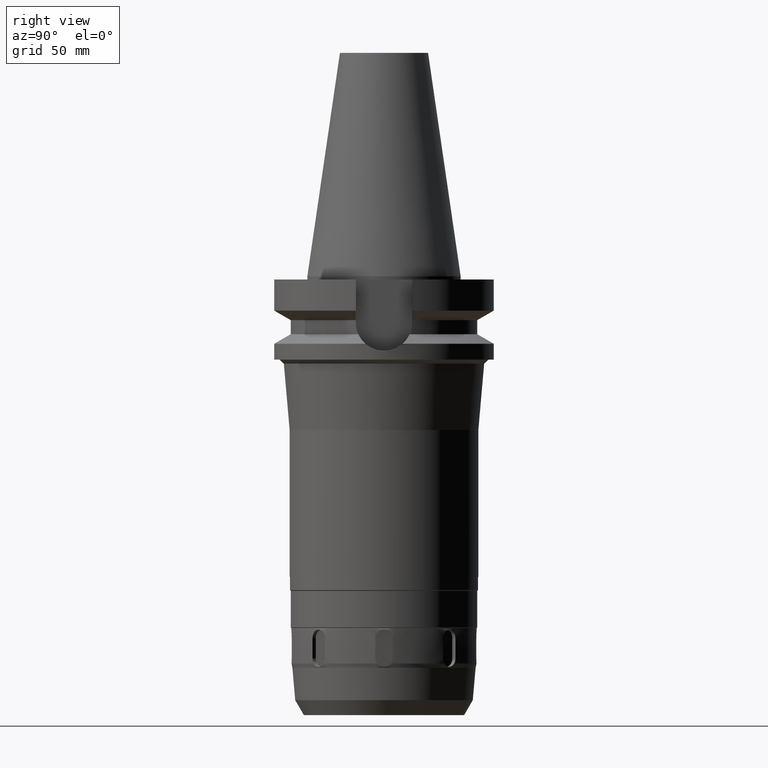
[diagram: clean part render]
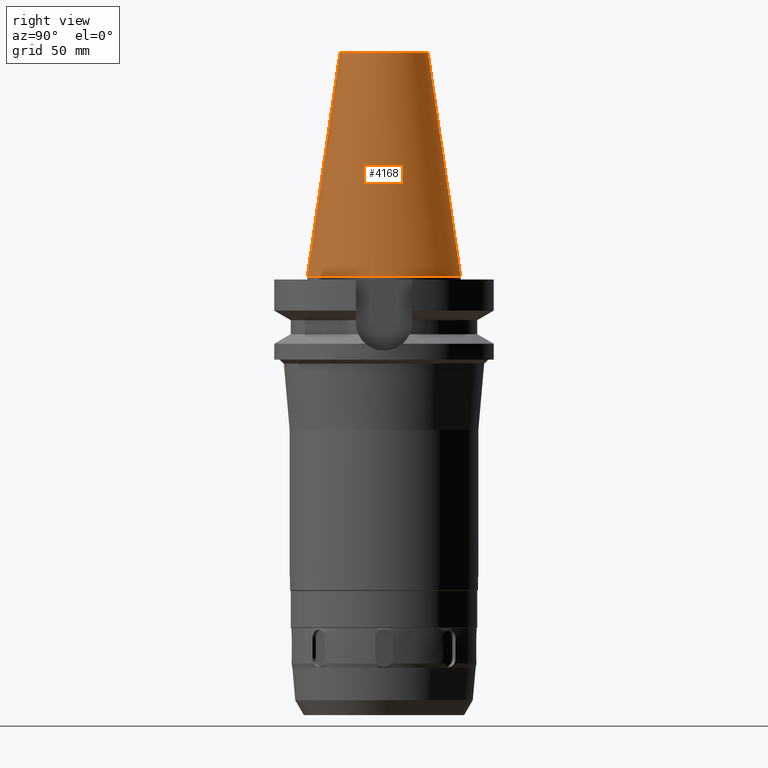
[diagram: same view with one face highlighted and labeled with its STEP entity id]
A machine part, right view. The second image highlights one B-rep face of the part: STEP entity #4168.
In plain terms, the highlighted conical surface has half-angle 8.297 deg.
Its self-contained STEP definition (entity closure, byte-faithful):
#1994=DIRECTION('',(0.E0,-1.443043893539E-1,-9.895333461856E-1));
#1995=VECTOR('',#1994,1.028767755957E2);
#1996=CARTESIAN_POINT('',(0.E0,-2.007942971896E1,1.018E2));
#1997=LINE('',#1996,#1995);
#2009=DIRECTION('',(0.E0,1.443043893539E-1,-9.895333461856E-1));
#2010=VECTOR('',#2009,1.028767755957E2);
#2011=CARTESIAN_POINT('',(0.E0,2.007942971896E1,1.018E2));
#2012=LINE('',#2011,#2010);
#2016=CARTESIAN_POINT('',(0.E0,1.847992019913E-14,3.979039320257E-13));
#2017=DIRECTION('',(0.E0,0.E0,-1.E0));
#2018=DIRECTION('',(0.E0,1.E0,0.E0));
#2019=AXIS2_PLACEMENT_3D('',#2016,#2017,#2018);
#2032=CARTESIAN_POINT('',(0.E0,1.847992019913E-14,1.018E2));
#2033=DIRECTION('',(0.E0,0.E0,-1.E0));
#2034=DIRECTION('',(0.E0,1.E0,0.E0));
#2035=AXIS2_PLACEMENT_3D('',#2032,#2033,#2034);
#2767=CARTESIAN_POINT('',(0.E0,3.4925E1,5.329070518201E-13));
#2768=VERTEX_POINT('',#2767);
#2769=CARTESIAN_POINT('',(0.E0,-3.4925E1,5.329070518201E-13));
#2770=VERTEX_POINT('',#2769);
#2771=CARTESIAN_POINT('',(0.E0,2.007942971896E1,1.018E2));
#2772=VERTEX_POINT('',#2771);
#2773=CARTESIAN_POINT('',(0.E0,-2.007942971896E1,1.018E2));
#2774=VERTEX_POINT('',#2773);
#4156=CARTESIAN_POINT('',(0.E0,1.847992019913E-14,5.09E1));
#4157=DIRECTION('',(0.E0,0.E0,-1.E0));
#4158=DIRECTION('',(0.E0,-1.E0,0.E0));
#4159=AXIS2_PLACEMENT_3D('',#4156,#4157,#4158);
#4160=CONICAL_SURFACE('',#4159,2.750221485948E1,8.297E0);
#4161=ORIENTED_EDGE('',*,*,#4146,.T.);
#4162=ORIENTED_EDGE('',*,*,#4123,.T.);
#4163=ORIENTED_EDGE('',*,*,#4150,.F.);
#4165=ORIENTED_EDGE('',*,*,#4164,.F.);
#4166=EDGE_LOOP('',(#4161,#4162,#4163,#4165));
#4167=FACE_OUTER_BOUND('',#4166,.F.);
#2020=CIRCLE('',#2019,3.4925E1);
#2036=CIRCLE('',#2035,2.007942971896E1);
#4123=EDGE_CURVE('',#2768,#2770,#2020,.T.);
#4146=EDGE_CURVE('',#2772,#2768,#2012,.T.);
#4150=EDGE_CURVE('',#2774,#2770,#1997,.T.);
#4164=EDGE_CURVE('',#2772,#2774,#2036,.T.);
#4168=ADVANCED_FACE('',(#4167),#4160,.T.);